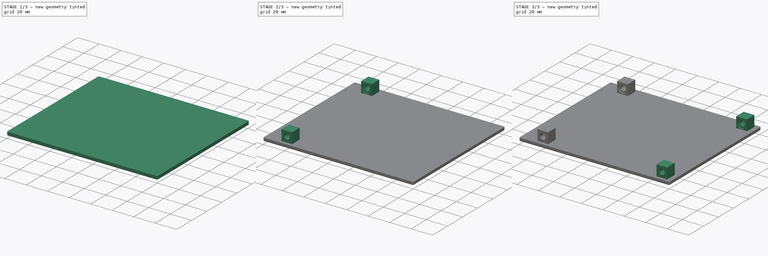
[diagram: build sequence overview — one tinted view per stage of 3, left to right]
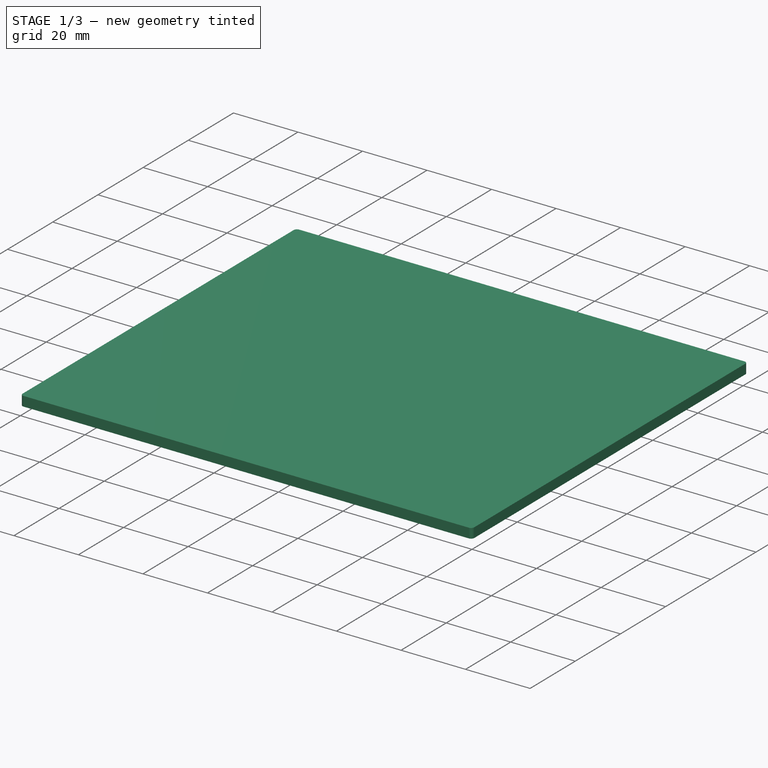
[diagram: stage 1 of 3 — iso view after this stage's code; geometry added in this stage tinted green]
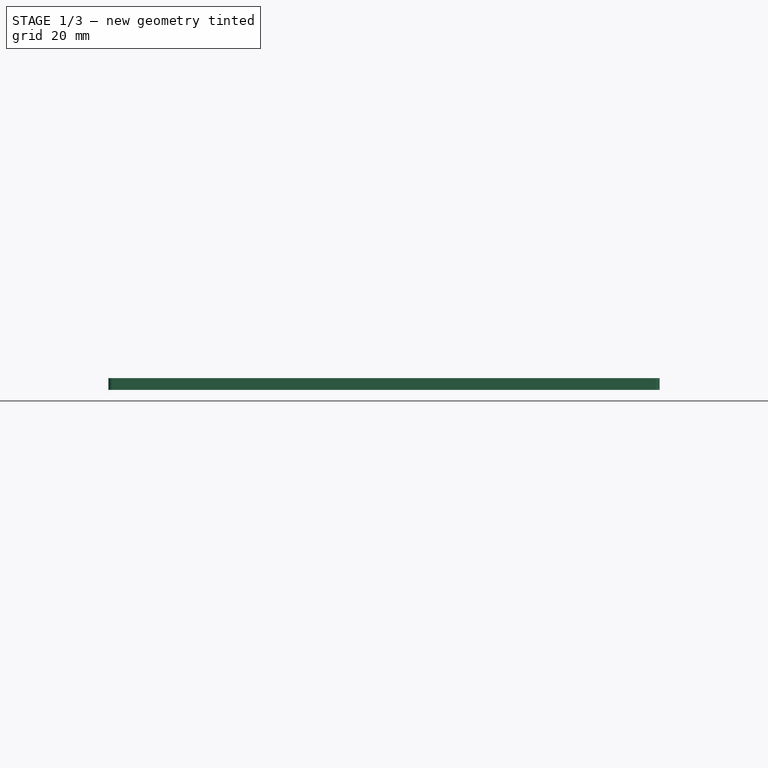
[diagram: stage 1 of 3 — front view after this stage's code; geometry added in this stage tinted green]
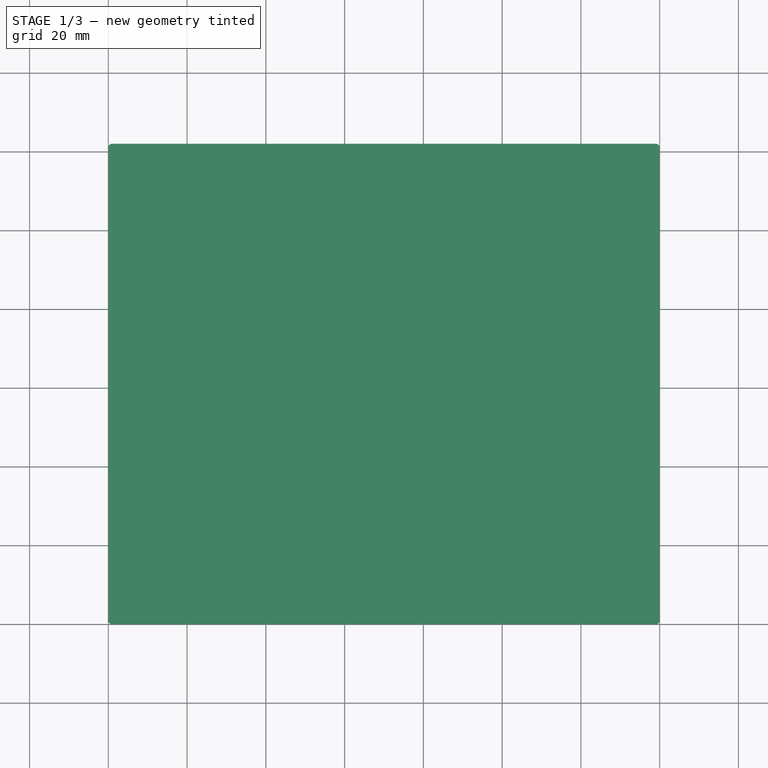
[diagram: stage 1 of 3 — top view after this stage's code; geometry added in this stage tinted green]
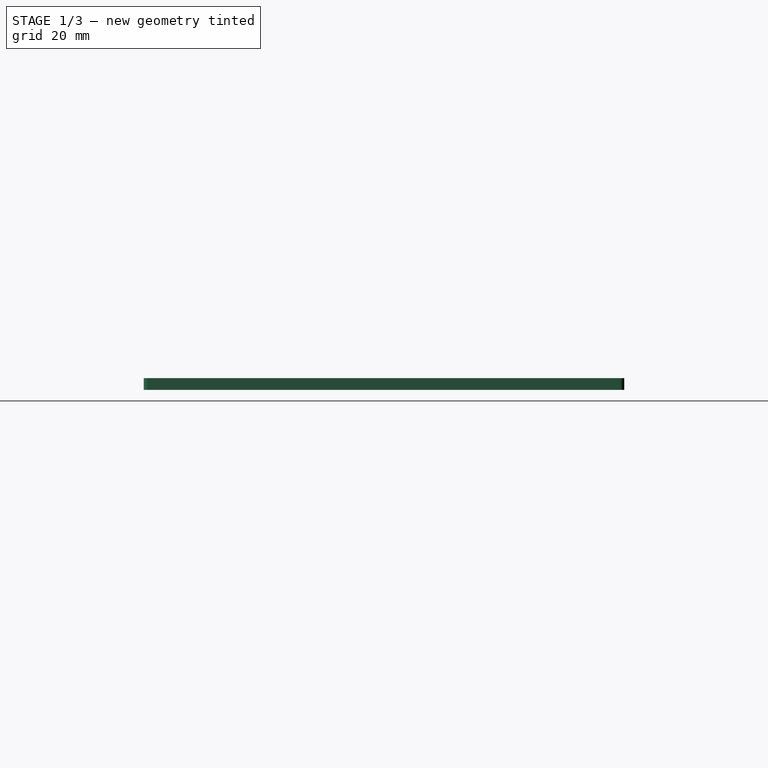
[diagram: stage 1 of 3 — right view after this stage's code; geometry added in this stage tinted green]
FCSTD DOCUMENT  (FreeCAD 0.20R29177 +426 (Git))
Label: Lid
License: All rights reserved
LicenseURL: http://en.wikipedia.org/wiki/All_rights_reserved
objects: Part::FeaturePython×4, PartDesign::Fillet×2, Sketcher::SketchObject×1, PartDesign::Pad×1, PartDesign::Body×1
note: 12 computed .brp shape members not serialized (recipe doc carries the construction recipe); baked Part::Feature solids carry a one-line shape summary decoded from their .brp

FEATURE [Sketcher::SketchObject] Sketch  label="CaseBody"
  FullyConstrained = true
  MapMode = 5
  Support = -> [XY_Plane]
  sketch-geometry (4):
    g0: LineSegment StartX=0 StartY=122 StartZ=0 EndX=140 EndY=122 EndZ=0
    g1: LineSegment StartX=140 StartY=122 StartZ=0 EndX=140 EndY=0 EndZ=0
    g2: LineSegment StartX=140 StartY=0 StartZ=0 EndX=0 EndY=0 EndZ=0
    g3: LineSegment StartX=0 StartY=0 StartZ=0 EndX=0 EndY=122 EndZ=0
  constraints (12):
    c: Coincident(g0,g1)
    c: Coincident(g1,g2)
    c: Coincident(g2,g3)
    c: Coincident(g3,g0)
    c: Horizontal(g0)
    c: Horizontal(g2)
    c: Vertical(g1)
    c: Vertical(g3)
    c: DistanceY(g3,g3) = 122
    c: DistanceX(g2,g2) = 140
    c: DistanceY(g-1,g2) = 0
    c: DistanceX(g-1,g2) = 0
FEATURE [PartDesign::Pad] Pad  label="CaseBody001"
  Direction = (0,0,1)
  Length = 3
  Length2 = 10
  Profile = -> Sketch
  ReferenceAxis = -> Sketch [N_Axis]
  Type = 0
FEATURE [PartDesign::Fillet] Fillet
  Base = -> Pad [Edge5,Edge2,Edge8,Edge1]
  BaseFeature = -> Pad
  Radius = 1
  SupportTransform = false
  UseAllEdges = false
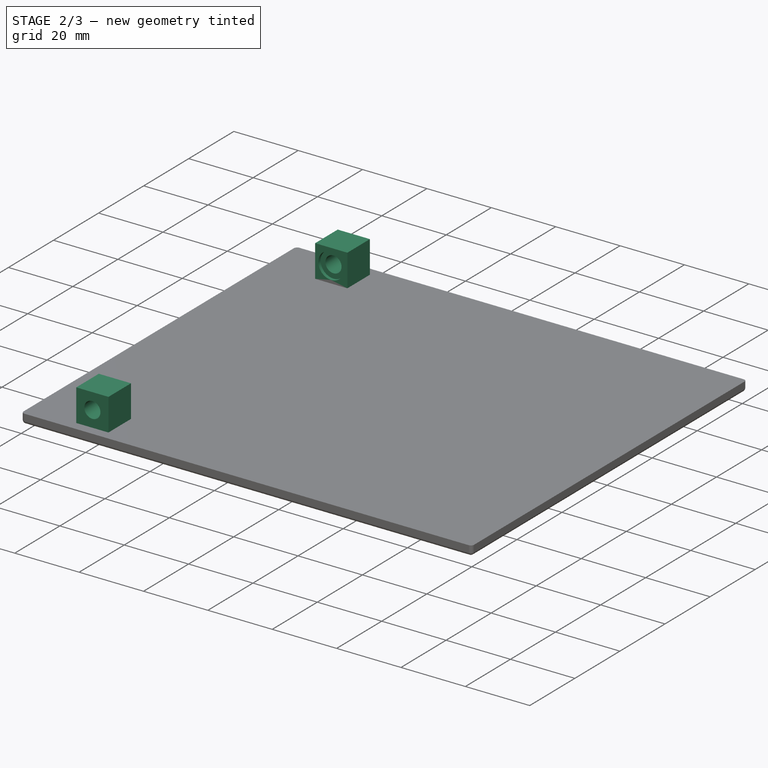
[diagram: stage 2 of 3 — iso view after this stage's code; geometry added in this stage tinted green]
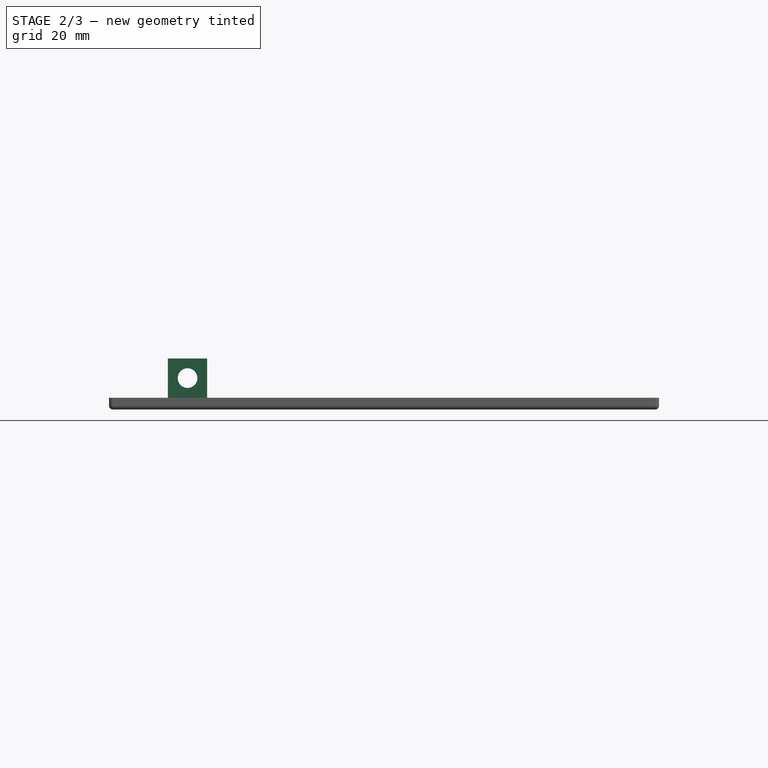
[diagram: stage 2 of 3 — front view after this stage's code; geometry added in this stage tinted green]
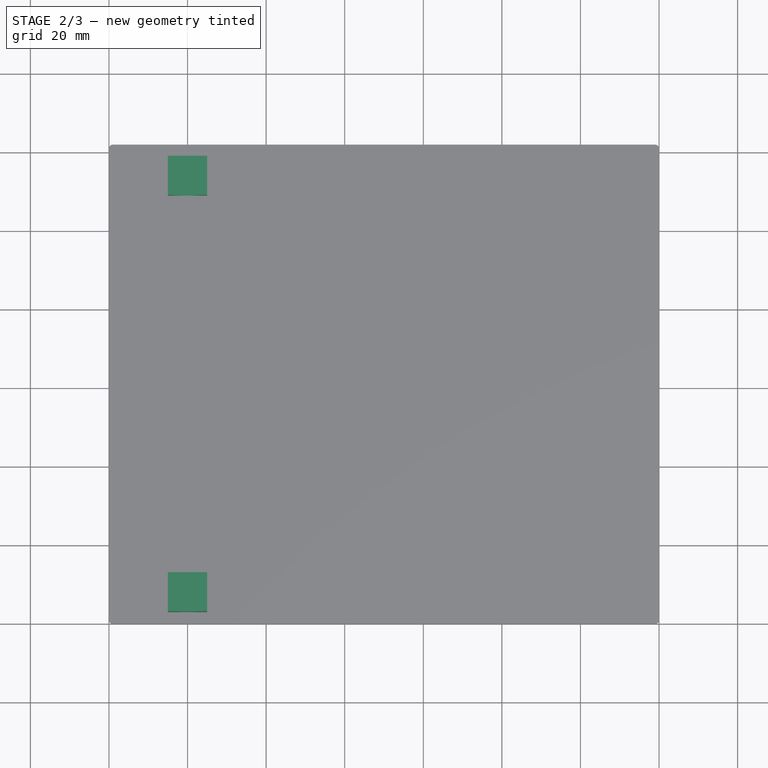
[diagram: stage 2 of 3 — top view after this stage's code; geometry added in this stage tinted green]
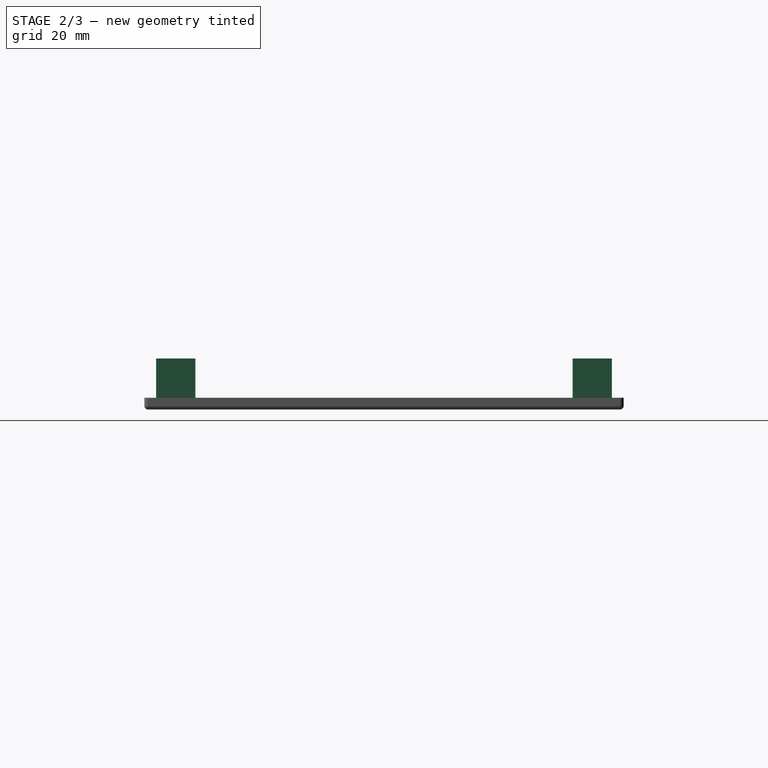
[diagram: stage 2 of 3 — right view after this stage's code; geometry added in this stage tinted green]
FEATURE [Part::FeaturePython] b_M3x9_001_002  label="M3x9_003"  # a2plus imported part (geometry in sourceFile) (typed FeaturePython)
  Placement = pos=(20,109,8) rot=(-1,0,0;1.5708rad)
  a2p_Version = 0.4.60n
  fixedPosition = false
  objectType = a2pPart
  sourceFile = .\..\..\..\..\3D Printing\Objects-Projects-FreeCAD\Sockets&Holders&Connectors\NutHolders\RivetNut\M3x9.FCStd
  subassemblyImport = false
  timeLastImport = 1.68579e+09
  updateColors = true
FEATURE [Part::FeaturePython] b_M3x9_001_003  label="M3x9_004"  # a2plus imported part (geometry in sourceFile) (typed FeaturePython)
  Placement = pos=(20,13,8) rot=(1,0,0;1.5708rad)
  a2p_Version = 0.4.60n
  fixedPosition = false
  objectType = a2pPart
  sourceFile = .\..\..\..\..\3D Printing\Objects-Projects-FreeCAD\Sockets&Holders&Connectors\NutHolders\RivetNut\M3x9.FCStd
  subassemblyImport = false
  timeLastImport = 1.68579e+09
  updateColors = true
FEATURE [PartDesign::Fillet] Fillet001
  Base = -> Fillet [Edge7,Edge11]
  BaseFeature = -> Fillet
  Radius = 1
  SupportTransform = false
  UseAllEdges = false
FEATURE [PartDesign::Body] Body
  Group = -> [Sketch,Pad,Fillet,Fillet001]
  Origin = -> Origin
  Tip = -> Fillet001
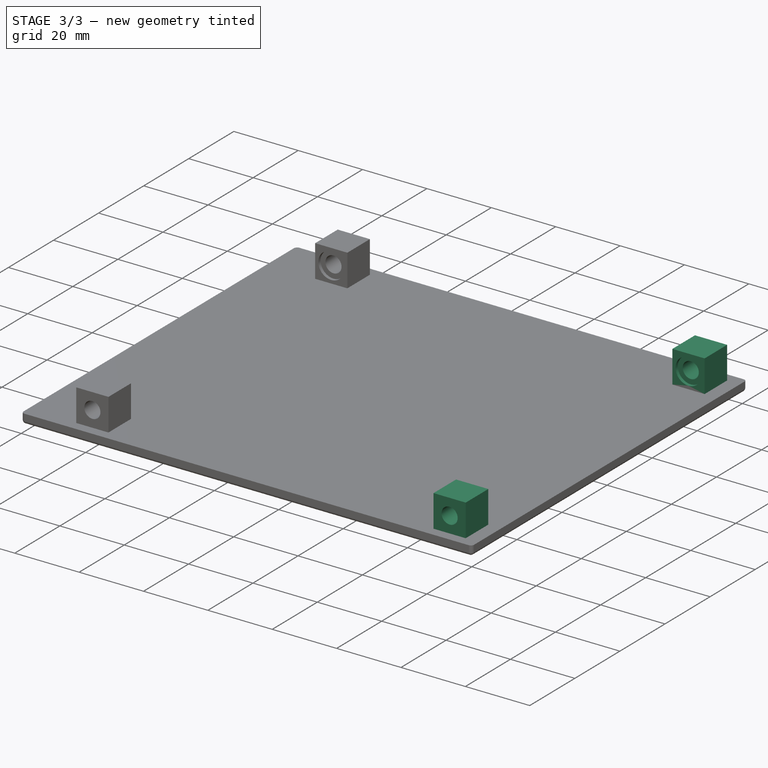
[diagram: stage 3 of 3 — iso view after this stage's code; geometry added in this stage tinted green]
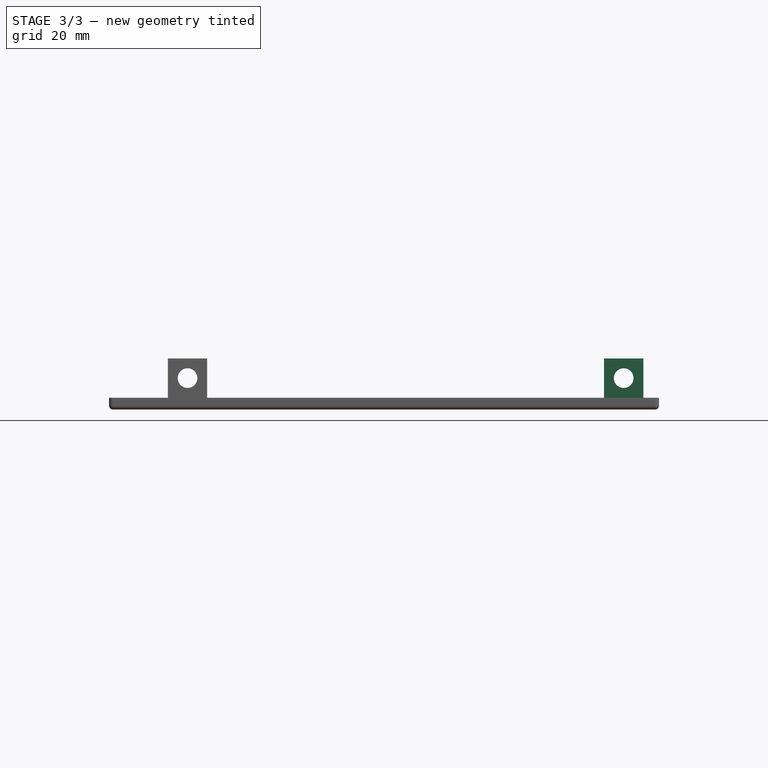
[diagram: stage 3 of 3 — front view after this stage's code; geometry added in this stage tinted green]
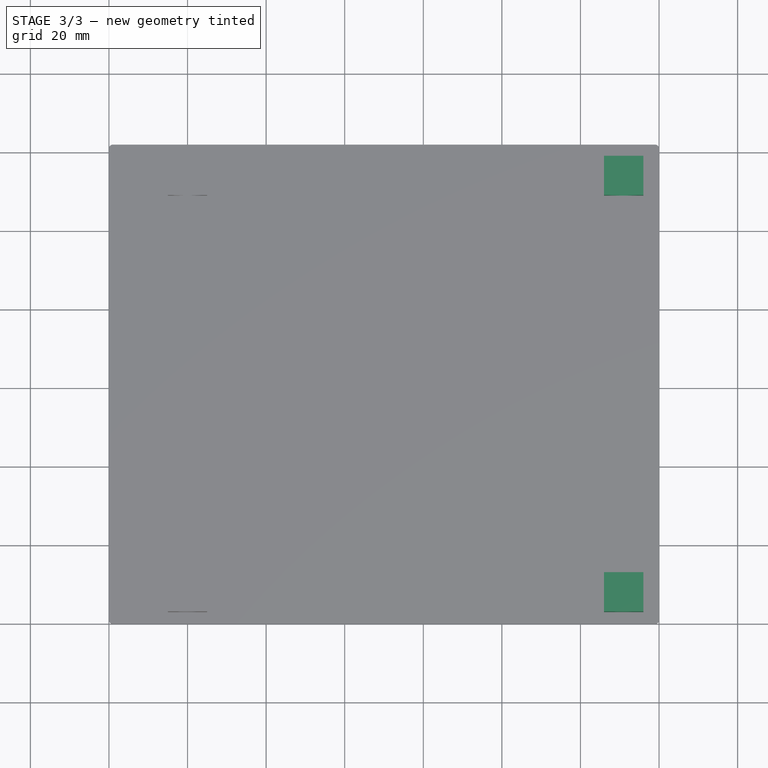
[diagram: stage 3 of 3 — top view after this stage's code; geometry added in this stage tinted green]
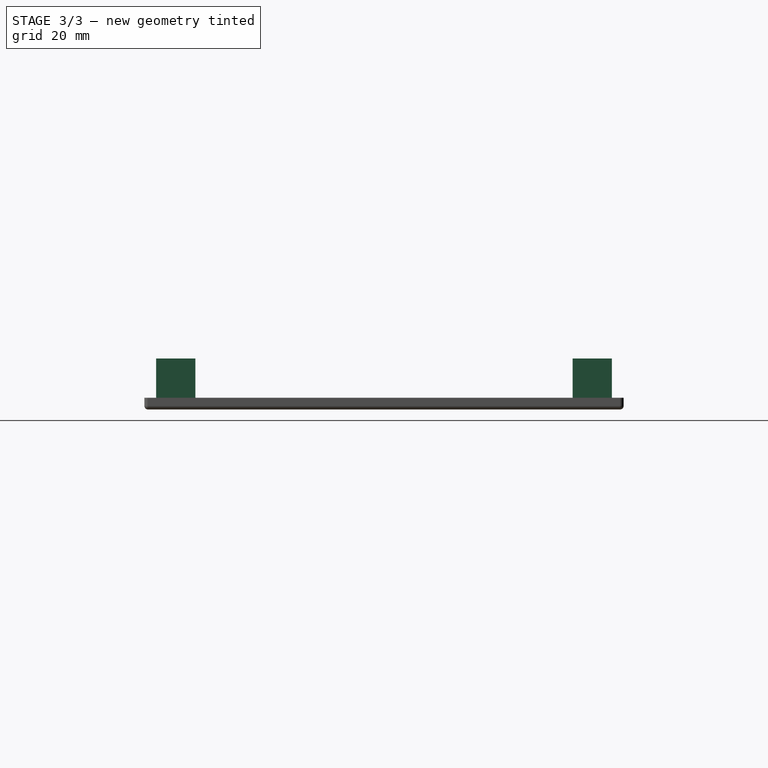
[diagram: stage 3 of 3 — right view after this stage's code; geometry added in this stage tinted green]
FEATURE [Part::FeaturePython] b_M3x9_001_  label="M3x9_001"  # a2plus imported part (geometry in sourceFile) (typed FeaturePython)
  Placement = pos=(131,109,8) rot=(-1,0,0;1.5708rad)
  a2p_Version = 0.4.60n
  fixedPosition = false
  objectType = a2pPart
  sourceFile = .\..\..\..\..\3D Printing\Objects-Projects-FreeCAD\Sockets&Holders&Connectors\NutHolders\RivetNut\M3x9.FCStd
  subassemblyImport = false
  timeLastImport = 1.68579e+09
  updateColors = true
FEATURE [Part::FeaturePython] b_M3x9_001_001  label="M3x9_002"  # a2plus imported part (geometry in sourceFile) (typed FeaturePython)
  Placement = pos=(131,13,8) rot=(1,0,0;1.5708rad)
  a2p_Version = 0.4.60n
  fixedPosition = false
  objectType = a2pPart
  sourceFile = .\..\..\..\..\3D Printing\Objects-Projects-FreeCAD\Sockets&Holders&Connectors\NutHolders\RivetNut\M3x9.FCStd
  subassemblyImport = false
  timeLastImport = 1.68579e+09
  updateColors = true
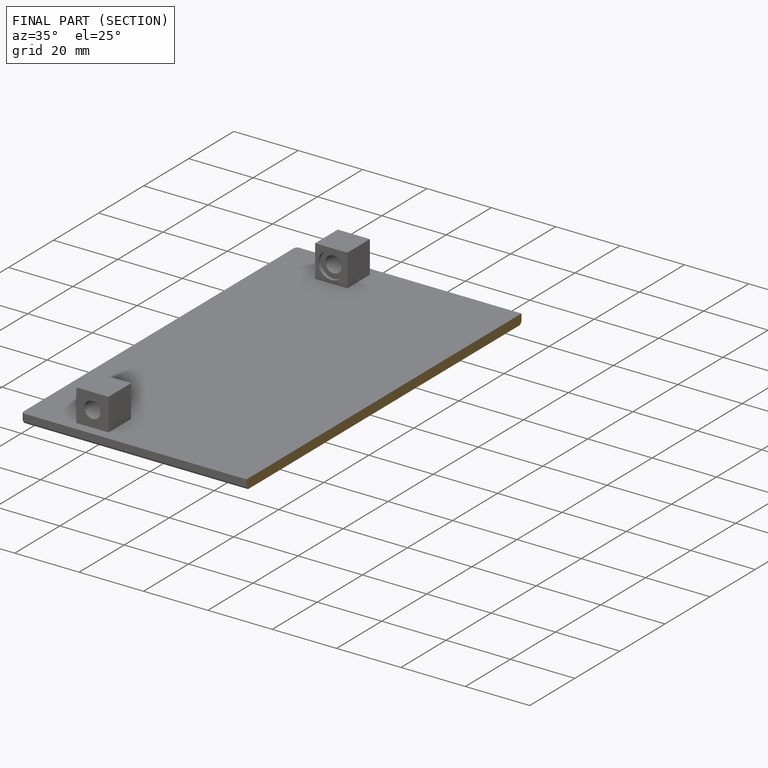
[diagram: finished part — half-section view (interior)]
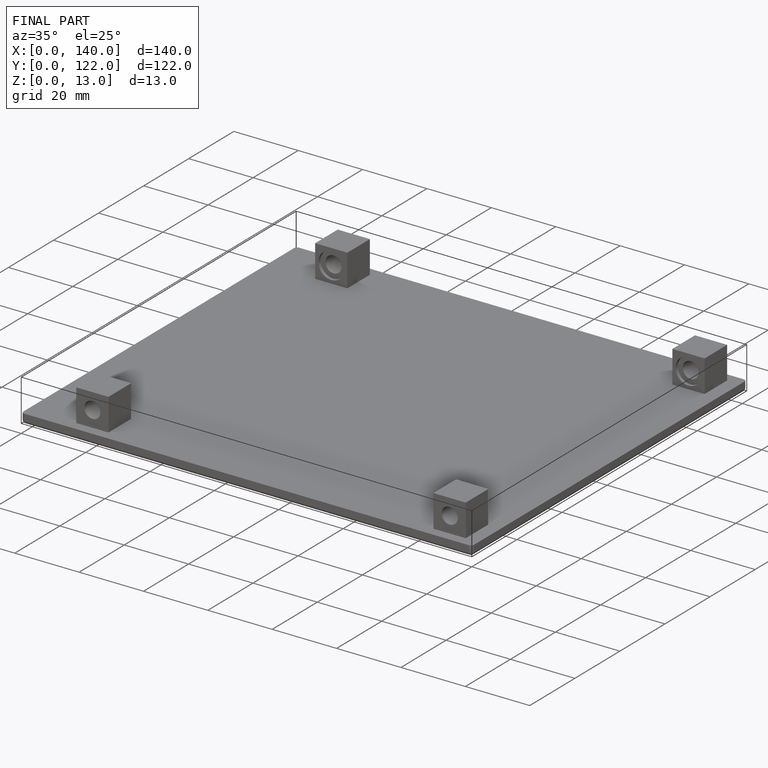
[diagram: finished part — iso view with bounding-box wireframe]
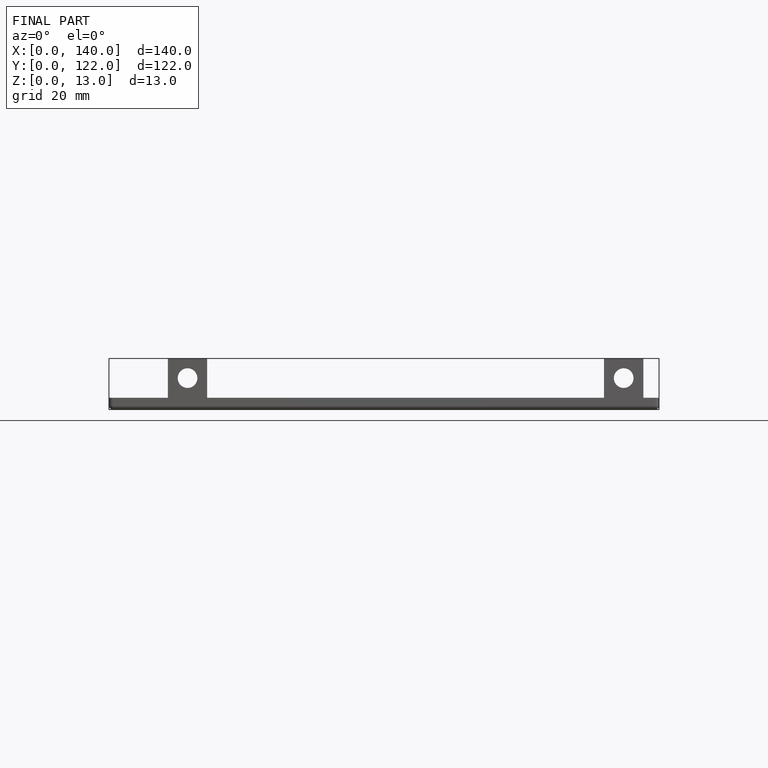
[diagram: finished part — front view with bounding-box wireframe]
